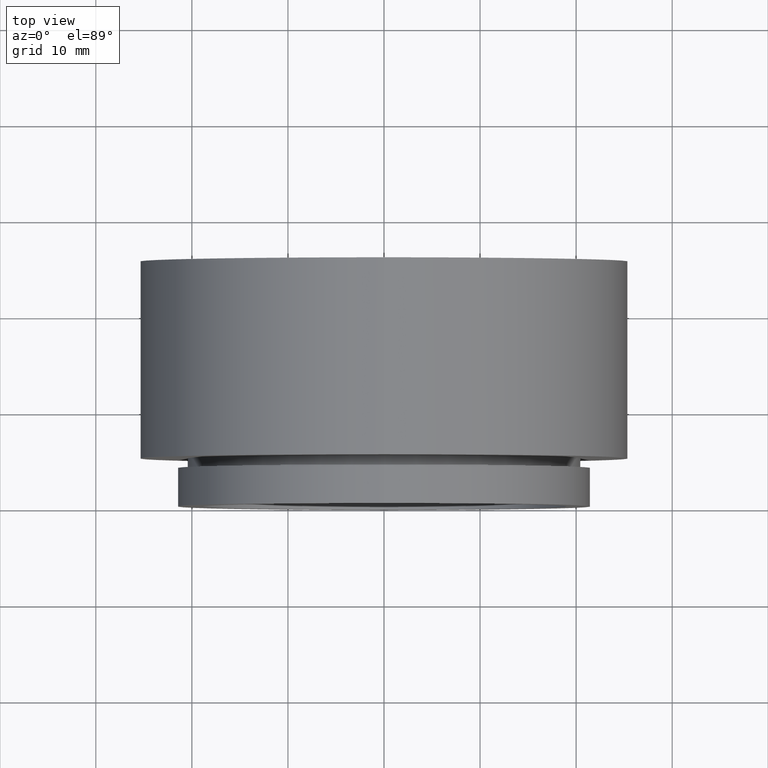
[diagram: clean part render]
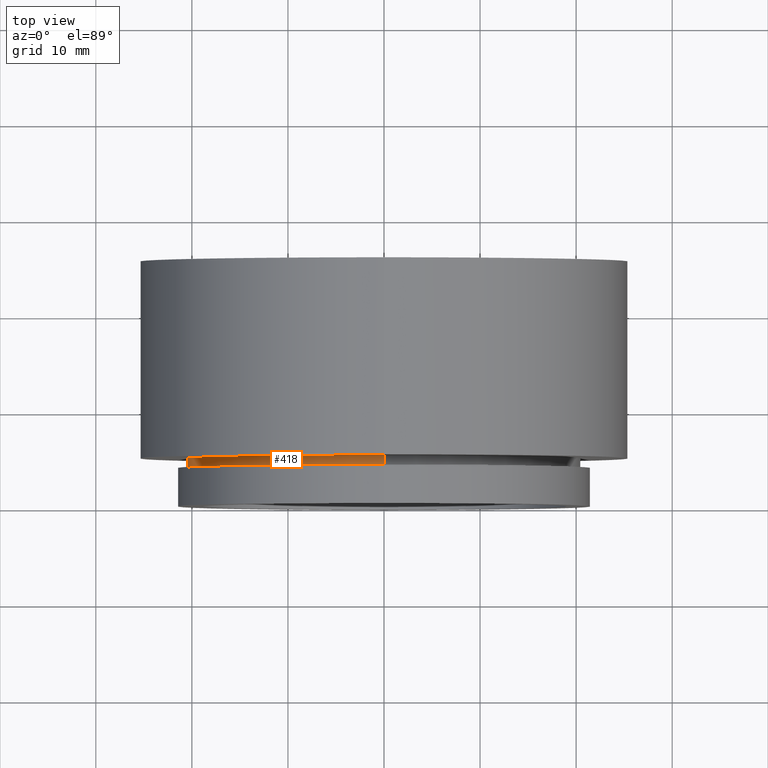
[diagram: same view with one face highlighted and labeled with its STEP entity id]
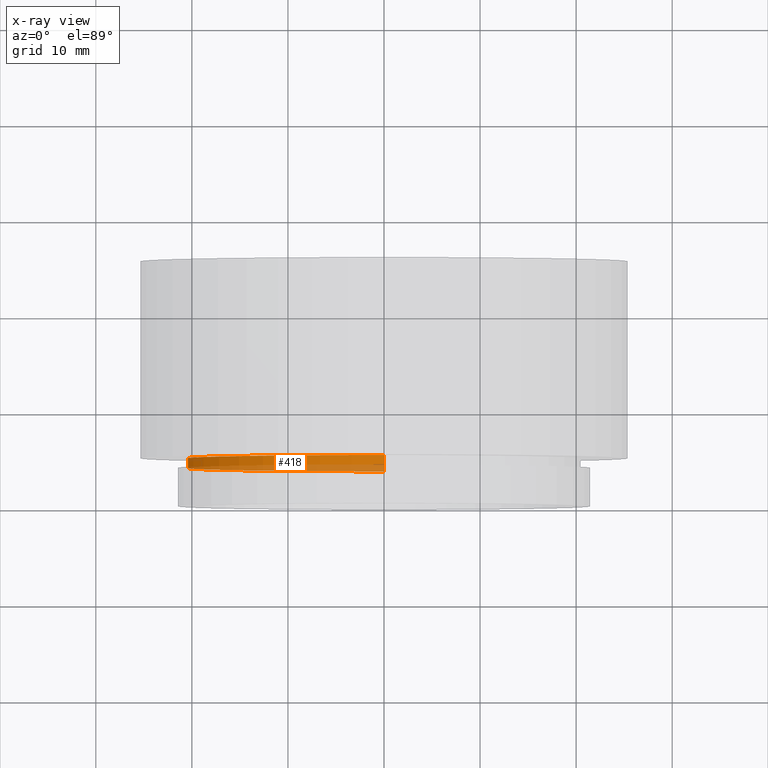
[diagram: x-ray of the same camera — body ghosted, the highlighted face saturated]
A machine part, top view. The second image highlights one B-rep face of the part: STEP entity #418.
The next image is the same camera in x-ray: the body ghosted, the highlighted face saturated — about 36% of this face is hidden behind the body in this view.
In plain terms, the highlighted cylindrical surface (partial cylindrical patch) has radius 20.5 mm, axis along (-0, -1, -0).
Its self-contained STEP definition (entity closure, byte-faithful):
#6 = DIRECTION ( 'NONE',  ( -0.0000000000000000000, -1.000000000000000000, -0.0000000000000000000 ) ) ;
#22 = VERTEX_POINT ( 'NONE', #363 ) ;
#38 = CARTESIAN_POINT ( 'NONE',  ( 0.0000000000000000000, 3.999999999999999100, 0.0000000000000000000 ) ) ;
#39 = CIRCLE ( 'NONE', #162, 20.50000000000000000 ) ;
#56 = VERTEX_POINT ( 'NONE', #94 ) ;
#94 = CARTESIAN_POINT ( 'NONE',  ( 0.0000000000000000000, 3.999999999999999100, -20.50000000000000000 ) ) ;
#107 = FACE_OUTER_BOUND ( 'NONE', #139, .T. ) ;
#139 = EDGE_LOOP ( 'NONE', ( #161, #633, #609, #376 ) ) ;
#155 = AXIS2_PLACEMENT_3D ( 'NONE', #239, #494, #379 ) ;
#161 = ORIENTED_EDGE ( 'NONE', *, *, #460, .F. ) ;
#162 = AXIS2_PLACEMENT_3D ( 'NONE', #38, #6, #166 ) ;
#166 = DIRECTION ( 'NONE',  ( 0.0000000000000000000, 0.0000000000000000000, -1.000000000000000000 ) ) ;
#176 = CARTESIAN_POINT ( 'NONE',  ( 0.0000000000000000000, 4.999999999999999100, -20.50000000000000000 ) ) ;
#239 = CARTESIAN_POINT ( 'NONE',  ( 0.0000000000000000000, 4.999999999999999100, 0.0000000000000000000 ) ) ;
#246 = EDGE_CURVE ( 'NONE', #651, #56, #39, .T. ) ;
#262 = CARTESIAN_POINT ( 'NONE',  ( 0.0000000000000000000, 0.0000000000000000000, 0.0000000000000000000 ) ) ;
#298 = CARTESIAN_POINT ( 'NONE',  ( 2.510525938252074500E-015, 0.0000000000000000000, 20.50000000000000000 ) ) ;
#301 = EDGE_CURVE ( 'NONE', #22, #575, #556, .T. ) ;
#309 = VECTOR ( 'NONE', #310, 1000.000000000000000 ) ;
#310 = DIRECTION ( 'NONE',  ( -0.0000000000000000000, -1.000000000000000000, -0.0000000000000000000 ) ) ;
#313 = CYLINDRICAL_SURFACE ( 'NONE', #394, 20.50000000000000000 ) ;
#363 = CARTESIAN_POINT ( 'NONE',  ( 2.510525938252074500E-015, 4.999999999999999100, 20.50000000000000000 ) ) ;
#376 = ORIENTED_EDGE ( 'NONE', *, *, #246, .F. ) ;
#379 = DIRECTION ( 'NONE',  ( 0.0000000000000000000, 0.0000000000000000000, -1.000000000000000000 ) ) ;
#394 = AXIS2_PLACEMENT_3D ( 'NONE', #262, #614, #610 ) ;
#418 = ADVANCED_FACE ( 'NONE', ( #107 ), #313, .T. ) ;
#424 = CARTESIAN_POINT ( 'NONE',  ( 0.0000000000000000000, 0.0000000000000000000, -20.50000000000000000 ) ) ;
#428 = VECTOR ( 'NONE', #599, 1000.000000000000000 ) ;
#460 = EDGE_CURVE ( 'NONE', #22, #651, #616, .T. ) ;
#468 = EDGE_CURVE ( 'NONE', #575, #56, #646, .T. ) ;
#494 = DIRECTION ( 'NONE',  ( -0.0000000000000000000, -1.000000000000000000, -0.0000000000000000000 ) ) ;
#537 = CARTESIAN_POINT ( 'NONE',  ( 2.510525938252074500E-015, 3.999999999999999100, 20.50000000000000000 ) ) ;
#556 = CIRCLE ( 'NONE', #155, 20.50000000000000000 ) ;
#575 = VERTEX_POINT ( 'NONE', #176 ) ;
#599 = DIRECTION ( 'NONE',  ( -0.0000000000000000000, -1.000000000000000000, -0.0000000000000000000 ) ) ;
#609 = ORIENTED_EDGE ( 'NONE', *, *, #468, .T. ) ;
#610 = DIRECTION ( 'NONE',  ( 0.0000000000000000000, 0.0000000000000000000, -1.000000000000000000 ) ) ;
#614 = DIRECTION ( 'NONE',  ( -0.0000000000000000000, -1.000000000000000000, -0.0000000000000000000 ) ) ;
#616 = LINE ( 'NONE', #298, #309 ) ;
#633 = ORIENTED_EDGE ( 'NONE', *, *, #301, .T. ) ;
#646 = LINE ( 'NONE', #424, #428 ) ;
#651 = VERTEX_POINT ( 'NONE', #537 ) ;